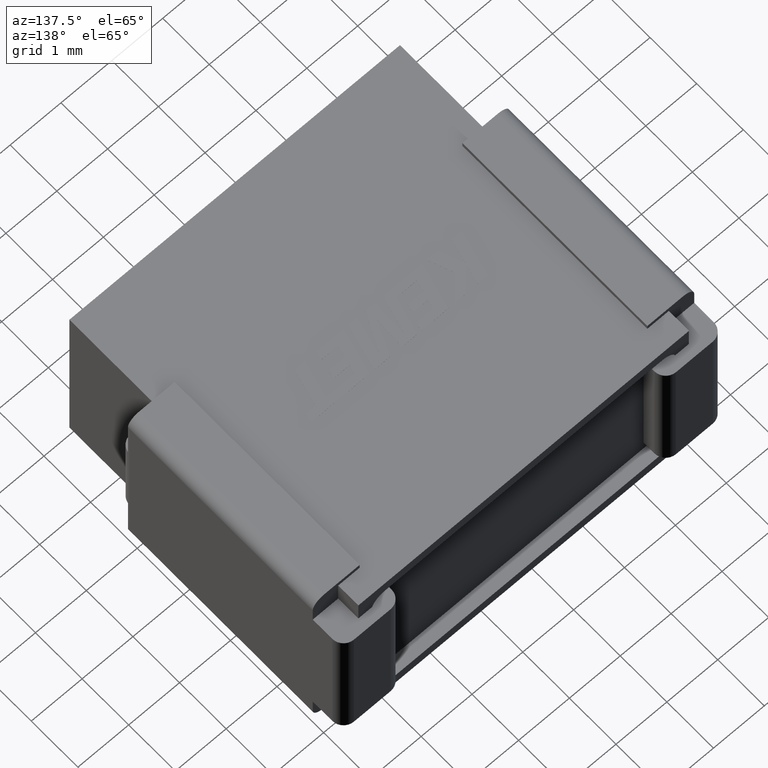
[diagram: clean part render]
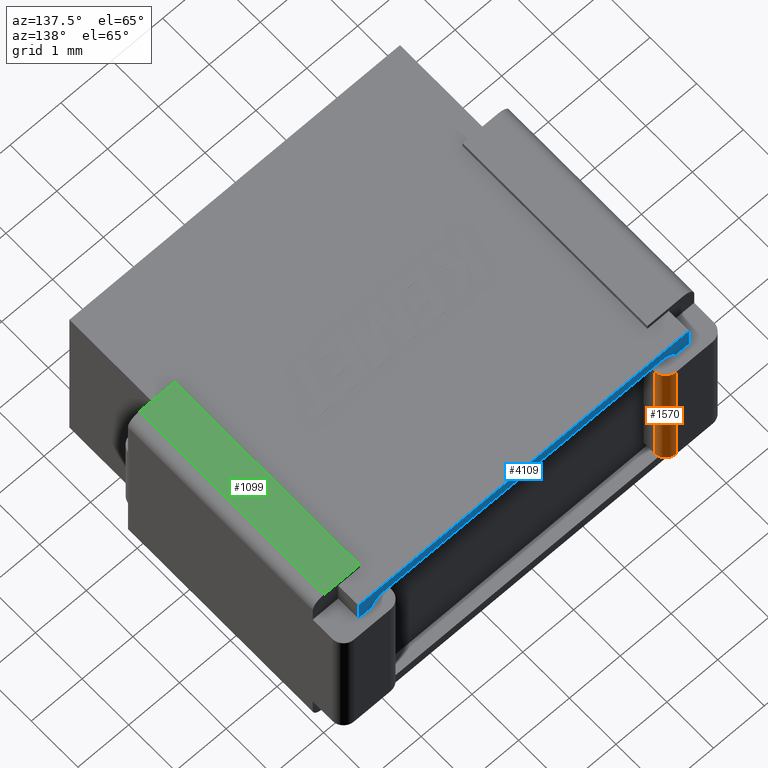
[diagram: same view with three faces highlighted in distinct colors, each labeled with its STEP entity id]
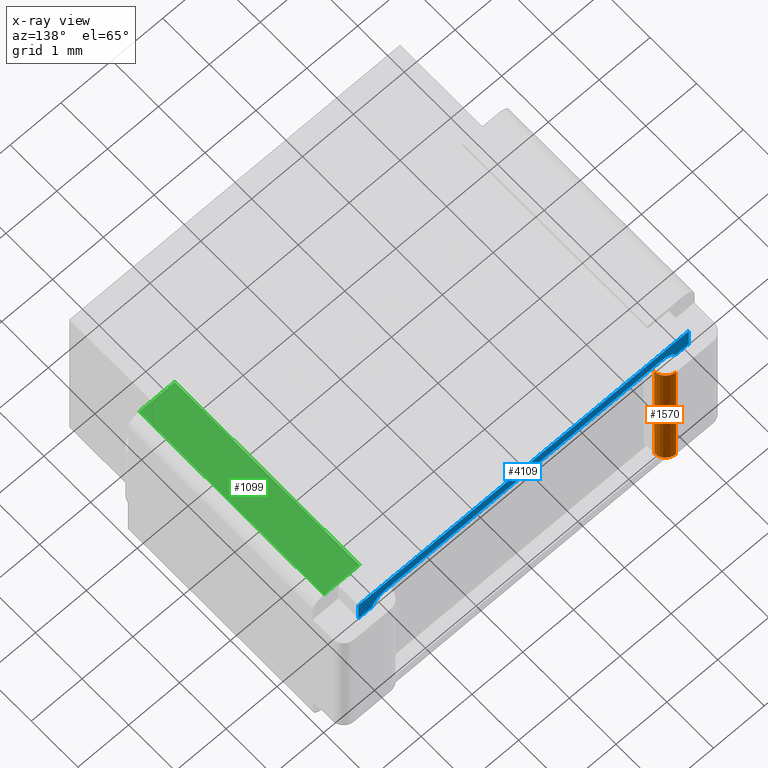
[diagram: x-ray of the same camera — body ghosted, the three highlighted faces saturated]
A machine part, auxiliary view with three faces highlighted in distinct colors.
The next image is the same camera in x-ray (body ghosted, the three faces saturated) — at least one of them is partly hidden behind the body in this view.
Their STEP definitions:

[orange] entity #1570 — the highlighted cylindrical surface (edge-blend (fillet) strip) has radius 0.222 mm, axis along (0, 0, 1).
#96 = DIRECTION ( 'NONE',  ( -0.000000000000000000, -0.000000000000000000, -1.000000000000000000 ) ) ;
#151 = EDGE_LOOP ( 'NONE', ( #4011, #3909, #3519, #2863 ) ) ;
#191 = VERTEX_POINT ( 'NONE', #1867 ) ;
#461 = DIRECTION ( 'NONE',  ( -0.000000000000000000, -0.000000000000000000, -1.000000000000000000 ) ) ;
#641 = EDGE_CURVE ( 'NONE', #3890, #3925, #2757, .T. ) ;
#759 = CARTESIAN_POINT ( 'NONE',  ( 0.4444164234811707193, 6.185426800507434208, -3.256000000000000227 ) ) ;
#773 = CIRCLE ( 'NONE', #2325, 0.2220000000000000029 ) ;
#850 = AXIS2_PLACEMENT_3D ( 'NONE', #759, #3566, #3140 ) ;
#926 = FACE_OUTER_BOUND ( 'NONE', #151, .T. ) ;
#944 = VECTOR ( 'NONE', #461, 1000.000000000000000 ) ;
#1260 = AXIS2_PLACEMENT_3D ( 'NONE', #3617, #1833, #2557 ) ;
#1272 = CARTESIAN_POINT ( 'NONE',  ( 0.4444164234811707193, 6.407426800507434628, -3.256000000000000227 ) ) ;
#1381 = EDGE_CURVE ( 'NONE', #3544, #191, #773, .T. ) ;
#1570 = ADVANCED_FACE ( 'NONE', ( #926 ), #4137, .T. ) ;
#1833 = DIRECTION ( 'NONE',  ( 0.000000000000000000, 0.000000000000000000, 1.000000000000000000 ) ) ;
#1867 = CARTESIAN_POINT ( 'NONE',  ( 0.6664164234811706944, 6.185426800507434208, -0.4439999999999999503 ) ) ;
#1926 = DIRECTION ( 'NONE',  ( -1.000000000000000000, 0.000000000000000000, 0.000000000000000000 ) ) ;
#2170 = CARTESIAN_POINT ( 'NONE',  ( 0.6664164234811706944, 6.185426800507434208, -3.256000000000000227 ) ) ;
#2175 = CARTESIAN_POINT ( 'NONE',  ( 0.4444164234811707193, 6.407426800507434628, -0.4439999999999999503 ) ) ;
#2325 = AXIS2_PLACEMENT_3D ( 'NONE', #2917, #96, #1926 ) ;
#2557 = DIRECTION ( 'NONE',  ( -1.000000000000000000, 0.000000000000000000, 0.000000000000000000 ) ) ;
#2646 = VECTOR ( 'NONE', #4121, 1000.000000000000000 ) ;
#2706 = CARTESIAN_POINT ( 'NONE',  ( 0.4444164234811707193, 6.407426800507434628, -3.256000000000000227 ) ) ;
#2757 = CIRCLE ( 'NONE', #1260, 0.2220000000000000029 ) ;
#2863 = ORIENTED_EDGE ( 'NONE', *, *, #2905, .T. ) ;
#2905 = EDGE_CURVE ( 'NONE', #191, #3890, #4391, .T. ) ;
#2917 = CARTESIAN_POINT ( 'NONE',  ( 0.4444164234811707193, 6.185426800507434208, -0.4439999999999999503 ) ) ;
#3140 = DIRECTION ( 'NONE',  ( -1.000000000000000000, 0.000000000000000000, 0.000000000000000000 ) ) ;
#3349 = EDGE_CURVE ( 'NONE', #3925, #3544, #4550, .T. ) ;
#3519 = ORIENTED_EDGE ( 'NONE', *, *, #1381, .T. ) ;
#3544 = VERTEX_POINT ( 'NONE', #2175 ) ;
#3566 = DIRECTION ( 'NONE',  ( 0.000000000000000000, 0.000000000000000000, 1.000000000000000000 ) ) ;
#3617 = CARTESIAN_POINT ( 'NONE',  ( 0.4444164234811707193, 6.185426800507434208, -3.256000000000000227 ) ) ;
#3890 = VERTEX_POINT ( 'NONE', #2170 ) ;
#3909 = ORIENTED_EDGE ( 'NONE', *, *, #3349, .T. ) ;
#3925 = VERTEX_POINT ( 'NONE', #1272 ) ;
#4011 = ORIENTED_EDGE ( 'NONE', *, *, #641, .T. ) ;
#4121 = DIRECTION ( 'NONE',  ( 0.000000000000000000, 0.000000000000000000, 1.000000000000000000 ) ) ;
#4137 = CYLINDRICAL_SURFACE ( 'NONE', #850, 0.2220000000000000029 ) ;
#4344 = CARTESIAN_POINT ( 'NONE',  ( 0.6664164234811706944, 6.185426800507434208, -3.256000000000000227 ) ) ;
#4391 = LINE ( 'NONE', #4344, #944 ) ;
#4550 = LINE ( 'NONE', #2706, #2646 ) ;

[blue] entity #4109 — the highlighted planar face has unit normal (0, 1, 0).
#27 = VERTEX_POINT ( 'NONE', #384 ) ;
#72 = EDGE_LOOP ( 'NONE', ( #1278, #3570, #374, #400, #2081, #4261, #2453, #331 ) ) ;
#98 = CARTESIAN_POINT ( 'NONE',  ( 5.973684210526315042, 6.200000000000000178, -0.2479999999999999982 ) ) ;
#107 = EDGE_CURVE ( 'NONE', #1540, #3900, #4225, .T. ) ;
#239 = CARTESIAN_POINT ( 'NONE',  ( 0.5263157894736835152, 6.200000000000000178, -0.2479999999999999982 ) ) ;
#331 = ORIENTED_EDGE ( 'NONE', *, *, #811, .T. ) ;
#373 = FACE_OUTER_BOUND ( 'NONE', #72, .T. ) ;
#374 = ORIENTED_EDGE ( 'NONE', *, *, #1629, .F. ) ;
#384 = CARTESIAN_POINT ( 'NONE',  ( -1.084202172485504434E-15, 6.200000000000000178, 0.000000000000000000 ) ) ;
#400 = ORIENTED_EDGE ( 'NONE', *, *, #2219, .F. ) ;
#410 = DIRECTION ( 'NONE',  ( 0.000000000000000000, 1.000000000000000000, 0.000000000000000000 ) ) ;
#600 = VERTEX_POINT ( 'NONE', #2627 ) ;
#665 = CARTESIAN_POINT ( 'NONE',  ( 0.5263157894736835152, 6.200000000000000178, -0.5111578947368420334 ) ) ;
#702 = DIRECTION ( 'NONE',  ( 1.000000000000000000, 0.000000000000000000, 0.000000000000000000 ) ) ;
#748 = CIRCLE ( 'NONE', #1563, 0.2631578947368420907 ) ;
#752 = CARTESIAN_POINT ( 'NONE',  ( 0.2631578947368414245, 6.200000000000000178, -0.2479999999999999982 ) ) ;
#775 = DIRECTION ( 'NONE',  ( -0.000000000000000000, -1.000000000000000000, -0.000000000000000000 ) ) ;
#811 = EDGE_CURVE ( 'NONE', #1540, #2919, #748, .T. ) ;
#898 = CARTESIAN_POINT ( 'NONE',  ( 6.228128496641845757, 6.200000000000000178, -0.4439999999999999503 ) ) ;
#1055 = CARTESIAN_POINT ( 'NONE',  ( -1.084202172485504434E-15, 6.200000000000000178, -3.700000000000000178 ) ) ;
#1128 = VECTOR ( 'NONE', #702, 1000.000000000000000 ) ;
#1130 = CARTESIAN_POINT ( 'NONE',  ( -1.084202172485504434E-15, 6.200000000000000178, -3.700000000000000178 ) ) ;
#1140 = VECTOR ( 'NONE', #3191, 1000.000000000000000 ) ;
#1278 = ORIENTED_EDGE ( 'NONE', *, *, #3211, .T. ) ;
#1325 = LINE ( 'NONE', #1130, #1529 ) ;
#1510 = LINE ( 'NONE', #2590, #2715 ) ;
#1529 = VECTOR ( 'NONE', #2580, 1000.000000000000000 ) ;
#1540 = VERTEX_POINT ( 'NONE', #239 ) ;
#1563 = AXIS2_PLACEMENT_3D ( 'NONE', #665, #1781, #3163 ) ;
#1629 = EDGE_CURVE ( 'NONE', #1909, #27, #3232, .T. ) ;
#1779 = EDGE_CURVE ( 'NONE', #3062, #600, #2957, .T. ) ;
#1781 = DIRECTION ( 'NONE',  ( -0.000000000000000000, -1.000000000000000000, -0.000000000000000000 ) ) ;
#1909 = VERTEX_POINT ( 'NONE', #3134 ) ;
#1915 = DIRECTION ( 'NONE',  ( 0.000000000000000000, 0.000000000000000000, 1.000000000000000000 ) ) ;
#2076 = EDGE_CURVE ( 'NONE', #3062, #3900, #2179, .T. ) ;
#2081 = ORIENTED_EDGE ( 'NONE', *, *, #1779, .F. ) ;
#2158 = PLANE ( 'NONE',  #2659 ) ;
#2179 = CIRCLE ( 'NONE', #3912, 0.2631578947368420907 ) ;
#2219 = EDGE_CURVE ( 'NONE', #600, #1909, #4170, .T. ) ;
#2283 = CARTESIAN_POINT ( 'NONE',  ( 0.2718715033581526885, 6.200000000000000178, -0.4439999999999999503 ) ) ;
#2332 = VECTOR ( 'NONE', #2853, 1000.000000000000000 ) ;
#2453 = ORIENTED_EDGE ( 'NONE', *, *, #107, .F. ) ;
#2504 = CARTESIAN_POINT ( 'NONE',  ( -1.084202172485504434E-15, 6.200000000000000178, 0.000000000000000000 ) ) ;
#2580 = DIRECTION ( 'NONE',  ( 0.000000000000000000, 0.000000000000000000, 1.000000000000000000 ) ) ;
#2590 = CARTESIAN_POINT ( 'NONE',  ( 6.499999999999997335, 6.200000000000001954, -0.4439999999999999503 ) ) ;
#2600 = EDGE_CURVE ( 'NONE', #4182, #27, #1325, .T. ) ;
#2627 = CARTESIAN_POINT ( 'NONE',  ( 6.499999999999999112, 6.200000000000000178, -0.4439999999999999503 ) ) ;
#2659 = AXIS2_PLACEMENT_3D ( 'NONE', #1055, #410, #3908 ) ;
#2715 = VECTOR ( 'NONE', #2989, 1000.000000000000000 ) ;
#2853 = DIRECTION ( 'NONE',  ( 0.000000000000000000, 0.000000000000000000, 1.000000000000000000 ) ) ;
#2919 = VERTEX_POINT ( 'NONE', #2283 ) ;
#2957 = LINE ( 'NONE', #2998, #4349 ) ;
#2975 = CARTESIAN_POINT ( 'NONE',  ( 5.973684210526315042, 6.200000000000000178, -0.5111578947368418113 ) ) ;
#2989 = DIRECTION ( 'NONE',  ( -1.000000000000000000, -6.938893903907228378E-16, 0.000000000000000000 ) ) ;
#2998 = CARTESIAN_POINT ( 'NONE',  ( -1.084202172485504434E-15, 6.200000000000000178, -0.4439999999999999503 ) ) ;
#3062 = VERTEX_POINT ( 'NONE', #898 ) ;
#3134 = CARTESIAN_POINT ( 'NONE',  ( 6.499999999999999112, 6.200000000000000178, 0.000000000000000000 ) ) ;
#3163 = DIRECTION ( 'NONE',  ( 0.000000000000000000, 0.000000000000000000, 1.000000000000000000 ) ) ;
#3191 = DIRECTION ( 'NONE',  ( -1.000000000000000000, -0.000000000000000000, -0.000000000000000000 ) ) ;
#3211 = EDGE_CURVE ( 'NONE', #2919, #4182, #1510, .T. ) ;
#3232 = LINE ( 'NONE', #2504, #1140 ) ;
#3570 = ORIENTED_EDGE ( 'NONE', *, *, #2600, .T. ) ;
#3677 = CARTESIAN_POINT ( 'NONE',  ( -1.084202172485504434E-15, 6.200000000000000178, -0.4439999999999999503 ) ) ;
#3900 = VERTEX_POINT ( 'NONE', #98 ) ;
#3908 = DIRECTION ( 'NONE',  ( 0.000000000000000000, -0.000000000000000000, 1.000000000000000000 ) ) ;
#3912 = AXIS2_PLACEMENT_3D ( 'NONE', #2975, #775, #1915 ) ;
#4109 = ADVANCED_FACE ( 'NONE', ( #373 ), #2158, .T. ) ;
#4170 = LINE ( 'NONE', #4245, #2332 ) ;
#4182 = VERTEX_POINT ( 'NONE', #3677 ) ;
#4225 = LINE ( 'NONE', #752, #1128 ) ;
#4245 = CARTESIAN_POINT ( 'NONE',  ( 6.499999999999999112, 6.200000000000000178, -3.700000000000000178 ) ) ;
#4261 = ORIENTED_EDGE ( 'NONE', *, *, #2076, .T. ) ;
#4349 = VECTOR ( 'NONE', #4415, 1000.000000000000000 ) ;
#4415 = DIRECTION ( 'NONE',  ( 1.000000000000000000, -0.000000000000000000, 0.000000000000000000 ) ) ;

[green] entity #1099 — the highlighted planar face has unit normal (-0, 0, 1).
#8 = VECTOR ( 'NONE', #2362, 1000.000000000000000 ) ;
#46 = ORIENTED_EDGE ( 'NONE', *, *, #685, .T. ) ;
#64 = PLANE ( 'NONE',  #2859 ) ;
#105 = DIRECTION ( 'NONE',  ( 0.000000000000000000, -1.000000000000000000, 0.000000000000000000 ) ) ;
#154 = DIRECTION ( 'NONE',  ( -1.029992063861229089E-16, 0.000000000000000000, 1.000000000000000000 ) ) ;
#238 = LINE ( 'NONE', #955, #8 ) ;
#457 = CARTESIAN_POINT ( 'NONE',  ( 6.078947368421053987, 5.767326539126284679, 0.09448822278001645092 ) ) ;
#540 = FACE_OUTER_BOUND ( 'NONE', #2427, .T. ) ;
#685 = EDGE_CURVE ( 'NONE', #4386, #2872, #238, .T. ) ;
#955 = CARTESIAN_POINT ( 'NONE',  ( 7.000000000000000888, 5.767326539126284679, 0.09448822278001654806 ) ) ;
#1081 = DIRECTION ( 'NONE',  ( -0.000000000000000000, 1.000000000000000000, -0.000000000000000000 ) ) ;
#1099 = ADVANCED_FACE ( 'NONE', ( #540 ), #64, .T. ) ;
#1212 = CARTESIAN_POINT ( 'NONE',  ( 7.000000000000000888, 1.799326539126285152, 0.09448822278001654806 ) ) ;
#1395 = VECTOR ( 'NONE', #4056, 1000.000000000000000 ) ;
#1581 = DIRECTION ( 'NONE',  ( 1.000000000000000000, 0.000000000000000000, 1.029992063861229089E-16 ) ) ;
#1698 = VERTEX_POINT ( 'NONE', #4071 ) ;
#1969 = EDGE_CURVE ( 'NONE', #2891, #4386, #2135, .T. ) ;
#2033 = VECTOR ( 'NONE', #1081, 1000.000000000000000 ) ;
#2135 = LINE ( 'NONE', #2857, #2033 ) ;
#2138 = CARTESIAN_POINT ( 'NONE',  ( 6.078947368421053987, 5.767326539126284679, 0.09448822278001645092 ) ) ;
#2362 = DIRECTION ( 'NONE',  ( -1.000000000000000000, 0.000000000000000000, -1.029992063861229089E-16 ) ) ;
#2427 = EDGE_LOOP ( 'NONE', ( #3127, #3688, #46, #2916 ) ) ;
#2664 = LINE ( 'NONE', #1212, #1395 ) ;
#2813 = CARTESIAN_POINT ( 'NONE',  ( 6.778000000000001357, 1.799326539126285152, 0.09448822278001652031 ) ) ;
#2857 = CARTESIAN_POINT ( 'NONE',  ( 6.778000000000001357, 5.767326539126284679, 0.09448822278001652031 ) ) ;
#2859 = AXIS2_PLACEMENT_3D ( 'NONE', #3976, #154, #1581 ) ;
#2872 = VERTEX_POINT ( 'NONE', #2138 ) ;
#2891 = VERTEX_POINT ( 'NONE', #2813 ) ;
#2916 = ORIENTED_EDGE ( 'NONE', *, *, #4485, .T. ) ;
#3067 = CARTESIAN_POINT ( 'NONE',  ( 6.778000000000001357, 5.767326539126284679, 0.09448822278001652031 ) ) ;
#3127 = ORIENTED_EDGE ( 'NONE', *, *, #4547, .F. ) ;
#3484 = VECTOR ( 'NONE', #105, 1000.000000000000000 ) ;
#3688 = ORIENTED_EDGE ( 'NONE', *, *, #1969, .T. ) ;
#3976 = CARTESIAN_POINT ( 'NONE',  ( 7.000000000000000888, 5.767326539126284679, 0.09448822278001654806 ) ) ;
#4056 = DIRECTION ( 'NONE',  ( -1.000000000000000000, 0.000000000000000000, -1.029992063861229089E-16 ) ) ;
#4071 = CARTESIAN_POINT ( 'NONE',  ( 6.078947368421053987, 1.799326539126285152, 0.09448822278001645092 ) ) ;
#4078 = LINE ( 'NONE', #457, #3484 ) ;
#4386 = VERTEX_POINT ( 'NONE', #3067 ) ;
#4485 = EDGE_CURVE ( 'NONE', #2872, #1698, #4078, .T. ) ;
#4547 = EDGE_CURVE ( 'NONE', #2891, #1698, #2664, .T. ) ;